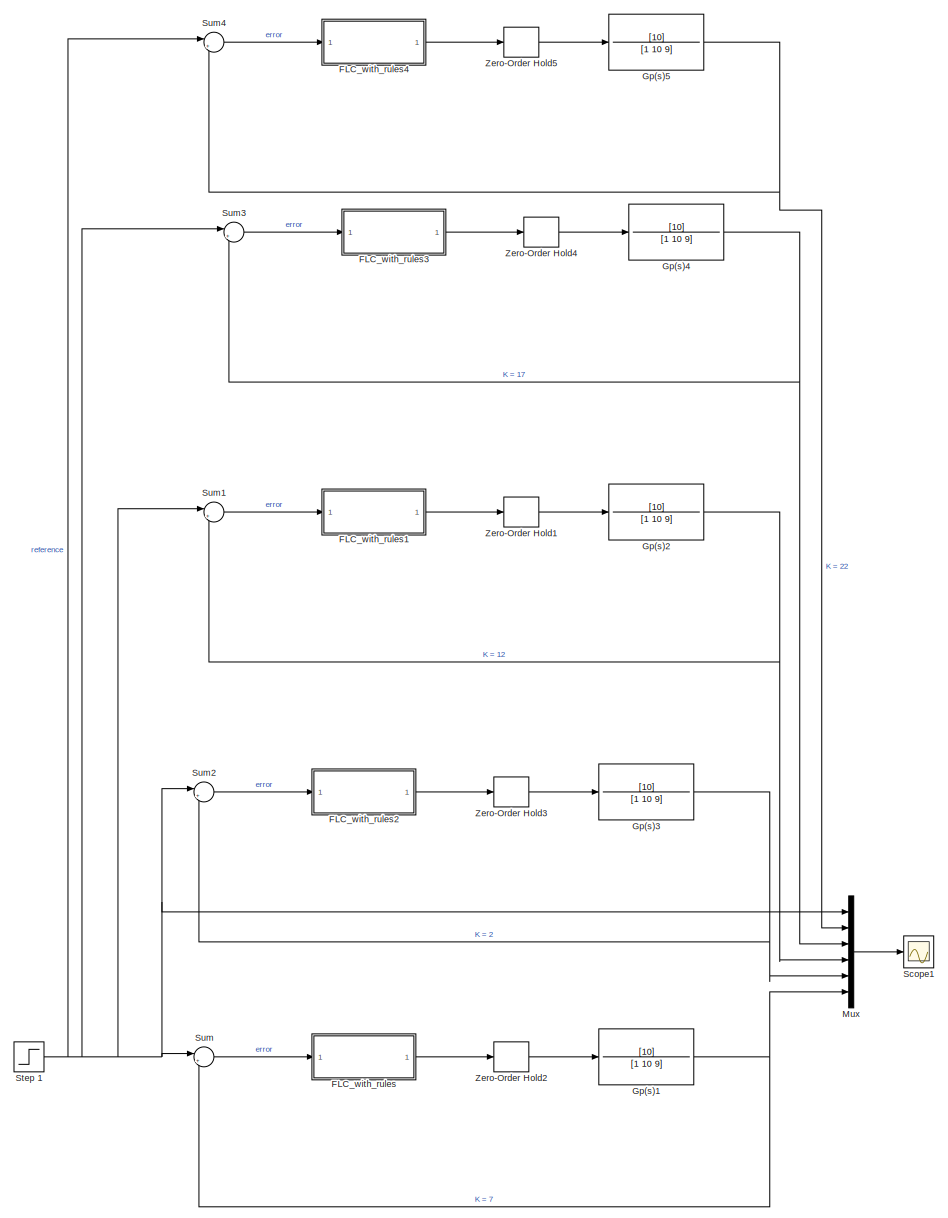
[diagram: root canvas - part 1/1, most of the canvas]
MODEL slx_d6fe6d2ef00e
KIND model
CONFIG AbsTol = auto
CONFIG EnableMultiTasking = off
CONFIG FixedStep = auto
CONFIG MaxStep = auto
CONFIG MinStep = auto
CONFIG RelTol = 1e-3
CONFIG SampleTimeConstraint = Unconstrained
CONFIG Solver = VariableStepAuto
CONFIG SolverName = VariableStepAuto
CONFIG StartTime = 0.0
CONFIG StopTime = 10.0
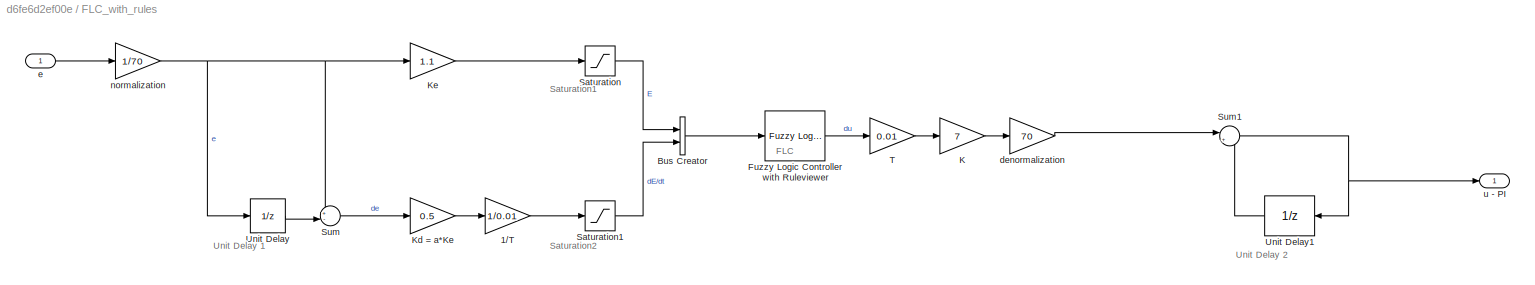
BLOCK [SubSystem] FLC_with_rules
  Ports = [1, 1]
  RequestExecContextInheritance = off
BLOCK [Gain] FLC_with_rules/1//T
  Gain = 1/0.01
  OutDataTypeStr = Inherit: Inherit via internal rule
  ParamDataTypeStr = Inherit: Inherit via internal rule
  SaturateOnIntegerOverflow = off
BLOCK [BusCreator] FLC_with_rules/Bus Creator
  DisplayOption = bar
  InheritFromInputs = on
  Inputs = 2
  Ports = [2, 1]
BLOCK [Reference] FLC_with_rules/Fuzzy Logic Controller with Ruleviewer  REF=fuzblock/Fuzzy Logic   (lib defined in mdl_858b3b3e7478)
Controller 
with Ruleviewer
  Ports = [1, 1]
  SourceBlock = fuzblock/Fuzzy Logic \nController \nwith Ruleviewer
  SourceProductBaseCode = FL
  SourceProductName = Fuzzy Logic Toolbox
  SourceType = Fuzzy Inference System
BLOCK [Gain] FLC_with_rules/K
  Gain = 7
  OutDataTypeStr = Inherit: Inherit via internal rule
  ParamDataTypeStr = Inherit: Inherit via internal rule
  SaturateOnIntegerOverflow = off
BLOCK [Gain] FLC_with_rules/Kd = a*Ke
  Gain = 0.5
  OutDataTypeStr = Inherit: Inherit via internal rule
  ParamDataTypeStr = Inherit: Inherit via internal rule
  SaturateOnIntegerOverflow = off
BLOCK [Gain] FLC_with_rules/Ke
  Gain = 1.1
  OutDataTypeStr = Inherit: Inherit via internal rule
  ParamDataTypeStr = Inherit: Inherit via internal rule
  SaturateOnIntegerOverflow = off
BLOCK [Saturate] FLC_with_rules/Saturation
  InputPortMap = u0
  LowerLimit = -1
  Ports = [1, 1]
  UpperLimit = 1
BLOCK [Saturate] FLC_with_rules/Saturation1
  InputPortMap = u0
  LowerLimit = -1
  Ports = [1, 1]
  UpperLimit = 1
BLOCK [Sum] FLC_with_rules/Sum
  IconShape = round
  InputSameDT = off
  Inputs = +-|
  OutDataTypeStr = Inherit: Inherit via internal rule
  Ports = [2, 1]
  SaturateOnIntegerOverflow = off
BLOCK [Sum] FLC_with_rules/Sum1
  IconShape = round
  InputSameDT = off
  Inputs = |++
  OutDataTypeStr = Inherit: Inherit via internal rule
  Ports = [2, 1]
  SaturateOnIntegerOverflow = off
BLOCK [Gain] FLC_with_rules/T
  Gain = 0.01
  OutDataTypeStr = Inherit: Inherit via internal rule
  ParamDataTypeStr = Inherit: Inherit via internal rule
  SaturateOnIntegerOverflow = off
BLOCK [UnitDelay] FLC_with_rules/Unit Delay
  HasFrameUpgradeWarning = on
  SampleTime = -1
BLOCK [UnitDelay] FLC_with_rules/Unit Delay1
  HasFrameUpgradeWarning = on
  SampleTime = -1
BLOCK [Gain] FLC_with_rules/denormalization
  Gain = 70
  OutDataTypeStr = Inherit: Inherit via internal rule
  ParamDataTypeStr = Inherit: Inherit via internal rule
  SaturateOnIntegerOverflow = off
BLOCK [Inport] FLC_with_rules/e
  IconDisplay = Port number
BLOCK [Gain] FLC_with_rules/normalization
  Gain = 1/70
  OutDataTypeStr = Inherit: Inherit via internal rule
  ParamDataTypeStr = Inherit: Inherit via internal rule
  SaturateOnIntegerOverflow = off
BLOCK [Outport] FLC_with_rules/u - PI
  IconDisplay = Port number
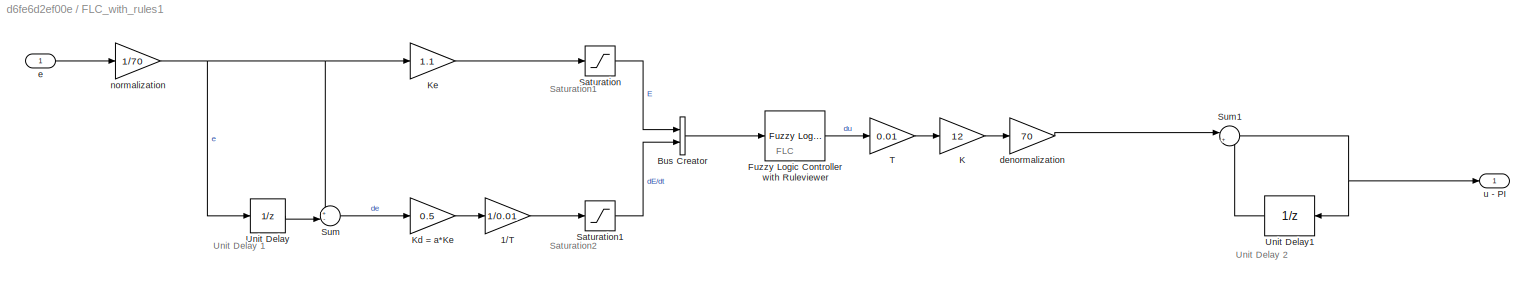
BLOCK [SubSystem] FLC_with_rules1
  Ports = [1, 1]
  RequestExecContextInheritance = off
BLOCK [Gain] FLC_with_rules1/1//T
  Gain = 1/0.01
  OutDataTypeStr = Inherit: Inherit via internal rule
  ParamDataTypeStr = Inherit: Inherit via internal rule
  SaturateOnIntegerOverflow = off
BLOCK [BusCreator] FLC_with_rules1/Bus Creator
  DisplayOption = bar
  InheritFromInputs = on
  Inputs = 2
  Ports = [2, 1]
BLOCK [Reference] FLC_with_rules1/Fuzzy Logic Controller with Ruleviewer  REF=fuzblock/Fuzzy Logic   (lib defined in mdl_858b3b3e7478)
Controller 
with Ruleviewer
  Ports = [1, 1]
  SourceBlock = fuzblock/Fuzzy Logic \nController \nwith Ruleviewer
  SourceProductBaseCode = FL
  SourceProductName = Fuzzy Logic Toolbox
  SourceType = Fuzzy Inference System
BLOCK [Gain] FLC_with_rules1/K
  Gain = 12
  OutDataTypeStr = Inherit: Inherit via internal rule
  ParamDataTypeStr = Inherit: Inherit via internal rule
  SaturateOnIntegerOverflow = off
BLOCK [Gain] FLC_with_rules1/Kd = a*Ke
  Gain = 0.5
  OutDataTypeStr = Inherit: Inherit via internal rule
  ParamDataTypeStr = Inherit: Inherit via internal rule
  SaturateOnIntegerOverflow = off
BLOCK [Gain] FLC_with_rules1/Ke
  Gain = 1.1
  OutDataTypeStr = Inherit: Inherit via internal rule
  ParamDataTypeStr = Inherit: Inherit via internal rule
  SaturateOnIntegerOverflow = off
BLOCK [Saturate] FLC_with_rules1/Saturation
  InputPortMap = u0
  LowerLimit = -1
  Ports = [1, 1]
  UpperLimit = 1
BLOCK [Saturate] FLC_with_rules1/Saturation1
  InputPortMap = u0
  LowerLimit = -1
  Ports = [1, 1]
  UpperLimit = 1
BLOCK [Sum] FLC_with_rules1/Sum
  IconShape = round
  InputSameDT = off
  Inputs = +-|
  OutDataTypeStr = Inherit: Inherit via internal rule
  Ports = [2, 1]
  SaturateOnIntegerOverflow = off
BLOCK [Sum] FLC_with_rules1/Sum1
  IconShape = round
  InputSameDT = off
  Inputs = |++
  OutDataTypeStr = Inherit: Inherit via internal rule
  Ports = [2, 1]
  SaturateOnIntegerOverflow = off
BLOCK [Gain] FLC_with_rules1/T
  Gain = 0.01
  OutDataTypeStr = Inherit: Inherit via internal rule
  ParamDataTypeStr = Inherit: Inherit via internal rule
  SaturateOnIntegerOverflow = off
BLOCK [UnitDelay] FLC_with_rules1/Unit Delay
  HasFrameUpgradeWarning = on
  SampleTime = -1
BLOCK [UnitDelay] FLC_with_rules1/Unit Delay1
  HasFrameUpgradeWarning = on
  SampleTime = -1
BLOCK [Gain] FLC_with_rules1/denormalization
  Gain = 70
  OutDataTypeStr = Inherit: Inherit via internal rule
  ParamDataTypeStr = Inherit: Inherit via internal rule
  SaturateOnIntegerOverflow = off
BLOCK [Inport] FLC_with_rules1/e
  IconDisplay = Port number
BLOCK [Gain] FLC_with_rules1/normalization
  Gain = 1/70
  OutDataTypeStr = Inherit: Inherit via internal rule
  ParamDataTypeStr = Inherit: Inherit via internal rule
  SaturateOnIntegerOverflow = off
BLOCK [Outport] FLC_with_rules1/u - PI
  IconDisplay = Port number
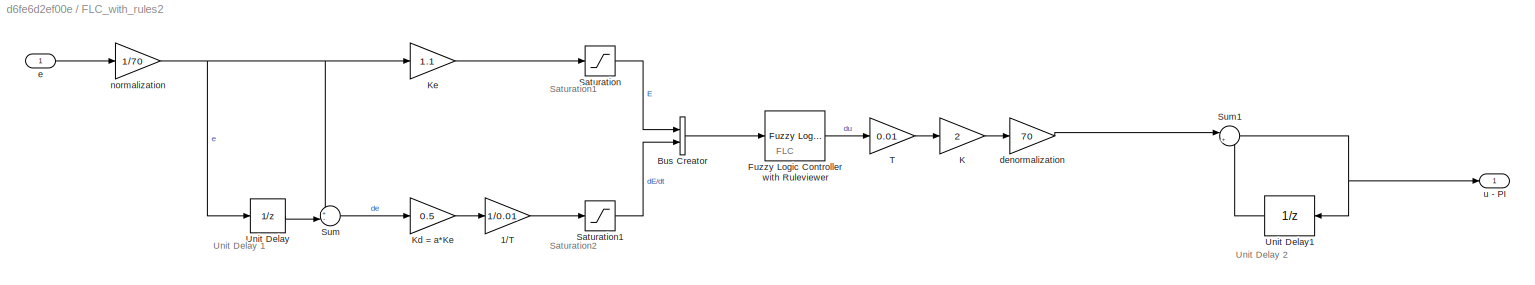
BLOCK [SubSystem] FLC_with_rules2
  Ports = [1, 1]
  RequestExecContextInheritance = off
BLOCK [Gain] FLC_with_rules2/1//T
  Gain = 1/0.01
  OutDataTypeStr = Inherit: Inherit via internal rule
  ParamDataTypeStr = Inherit: Inherit via internal rule
  SaturateOnIntegerOverflow = off
BLOCK [BusCreator] FLC_with_rules2/Bus Creator
  DisplayOption = bar
  InheritFromInputs = on
  Inputs = 2
  Ports = [2, 1]
BLOCK [Reference] FLC_with_rules2/Fuzzy Logic Controller with Ruleviewer  REF=fuzblock/Fuzzy Logic   (lib defined in mdl_858b3b3e7478)
Controller 
with Ruleviewer
  Ports = [1, 1]
  SourceBlock = fuzblock/Fuzzy Logic \nController \nwith Ruleviewer
  SourceProductBaseCode = FL
  SourceProductName = Fuzzy Logic Toolbox
  SourceType = Fuzzy Inference System
BLOCK [Gain] FLC_with_rules2/K
  Gain = 2
  OutDataTypeStr = Inherit: Inherit via internal rule
  ParamDataTypeStr = Inherit: Inherit via internal rule
  SaturateOnIntegerOverflow = off
BLOCK [Gain] FLC_with_rules2/Kd = a*Ke
  Gain = 0.5
  OutDataTypeStr = Inherit: Inherit via internal rule
  ParamDataTypeStr = Inherit: Inherit via internal rule
  SaturateOnIntegerOverflow = off
BLOCK [Gain] FLC_with_rules2/Ke
  Gain = 1.1
  OutDataTypeStr = Inherit: Inherit via internal rule
  ParamDataTypeStr = Inherit: Inherit via internal rule
  SaturateOnIntegerOverflow = off
BLOCK [Saturate] FLC_with_rules2/Saturation
  InputPortMap = u0
  LowerLimit = -1
  Ports = [1, 1]
  UpperLimit = 1
BLOCK [Saturate] FLC_with_rules2/Saturation1
  InputPortMap = u0
  LowerLimit = -1
  Ports = [1, 1]
  UpperLimit = 1
BLOCK [Sum] FLC_with_rules2/Sum
  IconShape = round
  InputSameDT = off
  Inputs = +-|
  OutDataTypeStr = Inherit: Inherit via internal rule
  Ports = [2, 1]
  SaturateOnIntegerOverflow = off
BLOCK [Sum] FLC_with_rules2/Sum1
  IconShape = round
  InputSameDT = off
  Inputs = |++
  OutDataTypeStr = Inherit: Inherit via internal rule
  Ports = [2, 1]
  SaturateOnIntegerOverflow = off
BLOCK [Gain] FLC_with_rules2/T
  Gain = 0.01
  OutDataTypeStr = Inherit: Inherit via internal rule
  ParamDataTypeStr = Inherit: Inherit via internal rule
  SaturateOnIntegerOverflow = off
BLOCK [UnitDelay] FLC_with_rules2/Unit Delay
  HasFrameUpgradeWarning = on
  SampleTime = -1
BLOCK [UnitDelay] FLC_with_rules2/Unit Delay1
  HasFrameUpgradeWarning = on
  SampleTime = -1
BLOCK [Gain] FLC_with_rules2/denormalization
  Gain = 70
  OutDataTypeStr = Inherit: Inherit via internal rule
  ParamDataTypeStr = Inherit: Inherit via internal rule
  SaturateOnIntegerOverflow = off
BLOCK [Inport] FLC_with_rules2/e
  IconDisplay = Port number
BLOCK [Gain] FLC_with_rules2/normalization
  Gain = 1/70
  OutDataTypeStr = Inherit: Inherit via internal rule
  ParamDataTypeStr = Inherit: Inherit via internal rule
  SaturateOnIntegerOverflow = off
BLOCK [Outport] FLC_with_rules2/u - PI
  IconDisplay = Port number
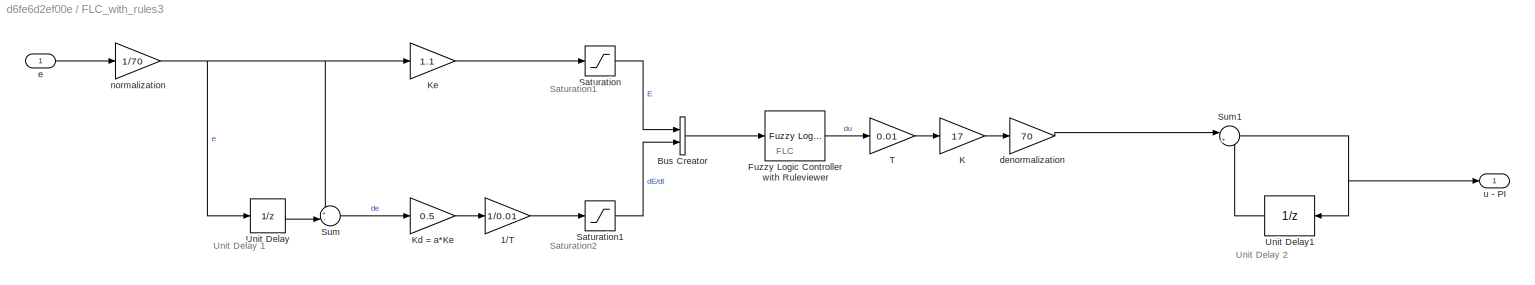
BLOCK [SubSystem] FLC_with_rules3
  Ports = [1, 1]
  RequestExecContextInheritance = off
BLOCK [Gain] FLC_with_rules3/1//T
  Gain = 1/0.01
  OutDataTypeStr = Inherit: Inherit via internal rule
  ParamDataTypeStr = Inherit: Inherit via internal rule
  SaturateOnIntegerOverflow = off
BLOCK [BusCreator] FLC_with_rules3/Bus Creator
  DisplayOption = bar
  InheritFromInputs = on
  Inputs = 2
  Ports = [2, 1]
BLOCK [Reference] FLC_with_rules3/Fuzzy Logic Controller with Ruleviewer  REF=fuzblock/Fuzzy Logic   (lib defined in mdl_858b3b3e7478)
Controller 
with Ruleviewer
  Ports = [1, 1]
  SourceBlock = fuzblock/Fuzzy Logic \nController \nwith Ruleviewer
  SourceProductBaseCode = FL
  SourceProductName = Fuzzy Logic Toolbox
  SourceType = Fuzzy Inference System
BLOCK [Gain] FLC_with_rules3/K
  Gain = 17
  OutDataTypeStr = Inherit: Inherit via internal rule
  ParamDataTypeStr = Inherit: Inherit via internal rule
  SaturateOnIntegerOverflow = off
BLOCK [Gain] FLC_with_rules3/Kd = a*Ke
  Gain = 0.5
  OutDataTypeStr = Inherit: Inherit via internal rule
  ParamDataTypeStr = Inherit: Inherit via internal rule
  SaturateOnIntegerOverflow = off
BLOCK [Gain] FLC_with_rules3/Ke
  Gain = 1.1
  OutDataTypeStr = Inherit: Inherit via internal rule
  ParamDataTypeStr = Inherit: Inherit via internal rule
  SaturateOnIntegerOverflow = off
BLOCK [Saturate] FLC_with_rules3/Saturation
  InputPortMap = u0
  LowerLimit = -1
  Ports = [1, 1]
  UpperLimit = 1
BLOCK [Saturate] FLC_with_rules3/Saturation1
  InputPortMap = u0
  LowerLimit = -1
  Ports = [1, 1]
  UpperLimit = 1
BLOCK [Sum] FLC_with_rules3/Sum
  IconShape = round
  InputSameDT = off
  Inputs = +-|
  OutDataTypeStr = Inherit: Inherit via internal rule
  Ports = [2, 1]
  SaturateOnIntegerOverflow = off
BLOCK [Sum] FLC_with_rules3/Sum1
  IconShape = round
  InputSameDT = off
  Inputs = |++
  OutDataTypeStr = Inherit: Inherit via internal rule
  Ports = [2, 1]
  SaturateOnIntegerOverflow = off
BLOCK [Gain] FLC_with_rules3/T
  Gain = 0.01
  OutDataTypeStr = Inherit: Inherit via internal rule
  ParamDataTypeStr = Inherit: Inherit via internal rule
  SaturateOnIntegerOverflow = off
BLOCK [UnitDelay] FLC_with_rules3/Unit Delay
  HasFrameUpgradeWarning = on
  SampleTime = -1
BLOCK [UnitDelay] FLC_with_rules3/Unit Delay1
  HasFrameUpgradeWarning = on
  SampleTime = -1
BLOCK [Gain] FLC_with_rules3/denormalization
  Gain = 70
  OutDataTypeStr = Inherit: Inherit via internal rule
  ParamDataTypeStr = Inherit: Inherit via internal rule
  SaturateOnIntegerOverflow = off
BLOCK [Inport] FLC_with_rules3/e
  IconDisplay = Port number
BLOCK [Gain] FLC_with_rules3/normalization
  Gain = 1/70
  OutDataTypeStr = Inherit: Inherit via internal rule
  ParamDataTypeStr = Inherit: Inherit via internal rule
  SaturateOnIntegerOverflow = off
BLOCK [Outport] FLC_with_rules3/u - PI
  IconDisplay = Port number
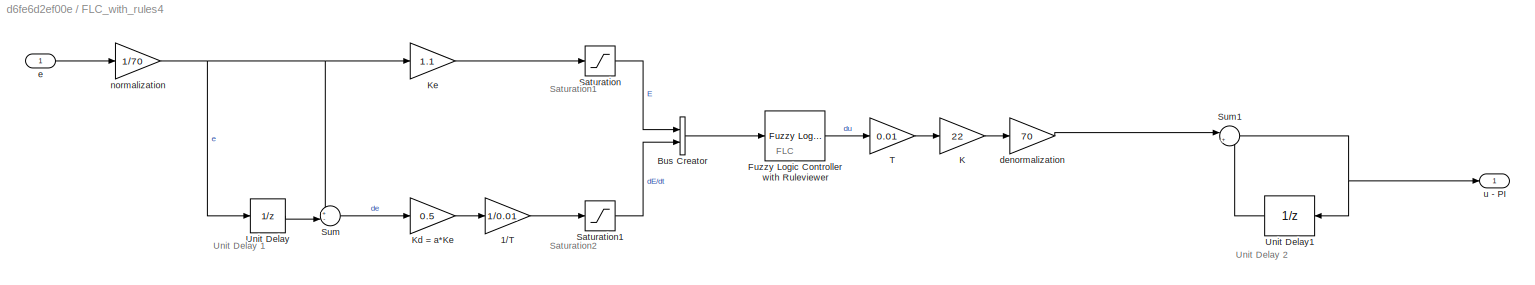
BLOCK [SubSystem] FLC_with_rules4
  Ports = [1, 1]
  RequestExecContextInheritance = off
BLOCK [Gain] FLC_with_rules4/1//T
  Gain = 1/0.01
  OutDataTypeStr = Inherit: Inherit via internal rule
  ParamDataTypeStr = Inherit: Inherit via internal rule
  SaturateOnIntegerOverflow = off
BLOCK [BusCreator] FLC_with_rules4/Bus Creator
  DisplayOption = bar
  InheritFromInputs = on
  Inputs = 2
  Ports = [2, 1]
BLOCK [Reference] FLC_with_rules4/Fuzzy Logic Controller with Ruleviewer  REF=fuzblock/Fuzzy Logic   (lib defined in mdl_858b3b3e7478)
Controller 
with Ruleviewer
  Ports = [1, 1]
  SourceBlock = fuzblock/Fuzzy Logic \nController \nwith Ruleviewer
  SourceProductBaseCode = FL
  SourceProductName = Fuzzy Logic Toolbox
  SourceType = Fuzzy Inference System
BLOCK [Gain] FLC_with_rules4/K
  Gain = 22
  OutDataTypeStr = Inherit: Inherit via internal rule
  ParamDataTypeStr = Inherit: Inherit via internal rule
  SaturateOnIntegerOverflow = off
BLOCK [Gain] FLC_with_rules4/Kd = a*Ke
  Gain = 0.5
  OutDataTypeStr = Inherit: Inherit via internal rule
  ParamDataTypeStr = Inherit: Inherit via internal rule
  SaturateOnIntegerOverflow = off
BLOCK [Gain] FLC_with_rules4/Ke
  Gain = 1.1
  OutDataTypeStr = Inherit: Inherit via internal rule
  ParamDataTypeStr = Inherit: Inherit via internal rule
  SaturateOnIntegerOverflow = off
BLOCK [Saturate] FLC_with_rules4/Saturation
  InputPortMap = u0
  LowerLimit = -1
  Ports = [1, 1]
  UpperLimit = 1
BLOCK [Saturate] FLC_with_rules4/Saturation1
  InputPortMap = u0
  LowerLimit = -1
  Ports = [1, 1]
  UpperLimit = 1
BLOCK [Sum] FLC_with_rules4/Sum
  IconShape = round
  InputSameDT = off
  Inputs = +-|
  OutDataTypeStr = Inherit: Inherit via internal rule
  Ports = [2, 1]
  SaturateOnIntegerOverflow = off
BLOCK [Sum] FLC_with_rules4/Sum1
  IconShape = round
  InputSameDT = off
  Inputs = |++
  OutDataTypeStr = Inherit: Inherit via internal rule
  Ports = [2, 1]
  SaturateOnIntegerOverflow = off
BLOCK [Gain] FLC_with_rules4/T
  Gain = 0.01
  OutDataTypeStr = Inherit: Inherit via internal rule
  ParamDataTypeStr = Inherit: Inherit via internal rule
  SaturateOnIntegerOverflow = off
BLOCK [UnitDelay] FLC_with_rules4/Unit Delay
  HasFrameUpgradeWarning = on
  SampleTime = -1
BLOCK [UnitDelay] FLC_with_rules4/Unit Delay1
  HasFrameUpgradeWarning = on
  SampleTime = -1
BLOCK [Gain] FLC_with_rules4/denormalization
  Gain = 70
  OutDataTypeStr = Inherit: Inherit via internal rule
  ParamDataTypeStr = Inherit: Inherit via internal rule
  SaturateOnIntegerOverflow = off
BLOCK [Inport] FLC_with_rules4/e
  IconDisplay = Port number
BLOCK [Gain] FLC_with_rules4/normalization
  Gain = 1/70
  OutDataTypeStr = Inherit: Inherit via internal rule
  ParamDataTypeStr = Inherit: Inherit via internal rule
  SaturateOnIntegerOverflow = off
BLOCK [Outport] FLC_with_rules4/u - PI
  IconDisplay = Port number
BLOCK [TransferFcn] Gp(s)1
  Denominator = [1 10 9]
  Numerator = [10]
BLOCK [TransferFcn] Gp(s)2
  Denominator = [1 10 9]
  Numerator = [10]
BLOCK [TransferFcn] Gp(s)3
  Denominator = [1 10 9]
  Numerator = [10]
BLOCK [TransferFcn] Gp(s)4
  Denominator = [1 10 9]
  Numerator = [10]
BLOCK [TransferFcn] Gp(s)5
  Denominator = [1 10 9]
  Numerator = [10]
BLOCK [Mux] Mux
  DisplayOption = bar
  Inputs = 6
  Ports = [6, 1]
BLOCK [Scope] Scope1
  Floating = off
  NumInputPorts = 1
  Ports = [1]
  ScopeSpecificationString = Simulink.scopes.TimeScopeBlockCfg('CurrentConfiguration', extmgr.ConfigurationSet(extmgr.Configuration('Core','General UI',true),extmgr.Configuration('Core','Source UI',true),extmgr.Configuration('Sources','WiredSimulink',true,'DataLogging',true,'DataLoggingVariableName','ScopeData1'),extmgr.Configuration('Visuals','Time Domain',true,'SerializedDisplays',{struct('MinYLimReal','-0.60229','MaxYLimRe...<+1845ch>
BLOCK [Step] Step 1
  SampleTime = 0.01
  Time = 0
BLOCK [Sum] Sum
  IconShape = round
  InputSameDT = off
  Inputs = |+-
  OutDataTypeStr = Inherit: Inherit via internal rule
  Ports = [2, 1]
  SaturateOnIntegerOverflow = off
BLOCK [Sum] Sum1
  IconShape = round
  InputSameDT = off
  Inputs = |+-
  OutDataTypeStr = Inherit: Inherit via internal rule
  Ports = [2, 1]
  SaturateOnIntegerOverflow = off
BLOCK [Sum] Sum2
  IconShape = round
  InputSameDT = off
  Inputs = |+-
  OutDataTypeStr = Inherit: Inherit via internal rule
  Ports = [2, 1]
  SaturateOnIntegerOverflow = off
BLOCK [Sum] Sum3
  IconShape = round
  InputSameDT = off
  Inputs = |+-
  OutDataTypeStr = Inherit: Inherit via internal rule
  Ports = [2, 1]
  SaturateOnIntegerOverflow = off
BLOCK [Sum] Sum4
  IconShape = round
  InputSameDT = off
  Inputs = |+-
  OutDataTypeStr = Inherit: Inherit via internal rule
  Ports = [2, 1]
  SaturateOnIntegerOverflow = off
BLOCK [ZeroOrderHold] Zero-Order Hold1
  SampleTime = 0.01
BLOCK [ZeroOrderHold] Zero-Order Hold2
  SampleTime = 0.01
BLOCK [ZeroOrderHold] Zero-Order Hold3
  SampleTime = 0.01
BLOCK [ZeroOrderHold] Zero-Order Hold4
  SampleTime = 0.01
BLOCK [ZeroOrderHold] Zero-Order Hold5
  SampleTime = 0.01
ANNOTATION FLC_with_rules: FLC
ANNOTATION FLC_with_rules: Saturation1
ANNOTATION FLC_with_rules: Saturation2
ANNOTATION FLC_with_rules: Unit Delay 1
ANNOTATION FLC_with_rules: Unit Delay 2
ANNOTATION FLC_with_rules1: FLC
ANNOTATION FLC_with_rules1: Saturation1
ANNOTATION FLC_with_rules1: Saturation2
ANNOTATION FLC_with_rules1: Unit Delay 1
ANNOTATION FLC_with_rules1: Unit Delay 2
ANNOTATION FLC_with_rules2: FLC
ANNOTATION FLC_with_rules2: Saturation1
ANNOTATION FLC_with_rules2: Saturation2
ANNOTATION FLC_with_rules2: Unit Delay 1
ANNOTATION FLC_with_rules2: Unit Delay 2
ANNOTATION FLC_with_rules3: FLC
ANNOTATION FLC_with_rules3: Saturation1
ANNOTATION FLC_with_rules3: Saturation2
ANNOTATION FLC_with_rules3: Unit Delay 1
ANNOTATION FLC_with_rules3: Unit Delay 2
ANNOTATION FLC_with_rules4: FLC
ANNOTATION FLC_with_rules4: Saturation1
ANNOTATION FLC_with_rules4: Saturation2
ANNOTATION FLC_with_rules4: Unit Delay 1
ANNOTATION FLC_with_rules4: Unit Delay 2
LINE FLC_with_rules/1//T:1 -> FLC_with_rules/Saturation1:1
LINE FLC_with_rules/Bus Creator:1 -> FLC_with_rules/Fuzzy Logic Controller with Ruleviewer:1
LINE FLC_with_rules/Fuzzy Logic Controller with Ruleviewer:1 -> FLC_with_rules/T:1
LINE FLC_with_rules/K:1 -> FLC_with_rules/denormalization:1
LINE FLC_with_rules/Kd = a*Ke:1 -> FLC_with_rules/1//T:1
LINE FLC_with_rules/Ke:1 -> FLC_with_rules/Saturation:1
LINE FLC_with_rules/Saturation1:1 -> FLC_with_rules/Bus Creator:2
LINE FLC_with_rules/Saturation:1 -> FLC_with_rules/Bus Creator:1
NET FLC_with_rules/Sum1:1 -> FLC_with_rules/Unit Delay1:1, FLC_with_rules/u - PI:1
LINE FLC_with_rules/Sum:1 -> FLC_with_rules/Kd = a*Ke:1
LINE FLC_with_rules/T:1 -> FLC_with_rules/K:1
LINE FLC_with_rules/Unit Delay1:1 -> FLC_with_rules/Sum1:2
LINE FLC_with_rules/Unit Delay:1 -> FLC_with_rules/Sum:2
LINE FLC_with_rules/denormalization:1 -> FLC_with_rules/Sum1:1
LINE FLC_with_rules/e:1 -> FLC_with_rules/normalization:1
NET FLC_with_rules/normalization:1 -> FLC_with_rules/Ke:1, FLC_with_rules/Sum:1, FLC_with_rules/Unit Delay:1
LINE FLC_with_rules1/1//T:1 -> FLC_with_rules1/Saturation1:1
LINE FLC_with_rules1/Bus Creator:1 -> FLC_with_rules1/Fuzzy Logic Controller with Ruleviewer:1
LINE FLC_with_rules1/Fuzzy Logic Controller with Ruleviewer:1 -> FLC_with_rules1/T:1
LINE FLC_with_rules1/K:1 -> FLC_with_rules1/denormalization:1
LINE FLC_with_rules1/Kd = a*Ke:1 -> FLC_with_rules1/1//T:1
LINE FLC_with_rules1/Ke:1 -> FLC_with_rules1/Saturation:1
LINE FLC_with_rules1/Saturation1:1 -> FLC_with_rules1/Bus Creator:2
LINE FLC_with_rules1/Saturation:1 -> FLC_with_rules1/Bus Creator:1
NET FLC_with_rules1/Sum1:1 -> FLC_with_rules1/Unit Delay1:1, FLC_with_rules1/u - PI:1
LINE FLC_with_rules1/Sum:1 -> FLC_with_rules1/Kd = a*Ke:1
LINE FLC_with_rules1/T:1 -> FLC_with_rules1/K:1
LINE FLC_with_rules1/Unit Delay1:1 -> FLC_with_rules1/Sum1:2
LINE FLC_with_rules1/Unit Delay:1 -> FLC_with_rules1/Sum:2
LINE FLC_with_rules1/denormalization:1 -> FLC_with_rules1/Sum1:1
LINE FLC_with_rules1/e:1 -> FLC_with_rules1/normalization:1
NET FLC_with_rules1/normalization:1 -> FLC_with_rules1/Ke:1, FLC_with_rules1/Sum:1, FLC_with_rules1/Unit Delay:1
LINE FLC_with_rules1:1 -> Zero-Order Hold1:1
LINE FLC_with_rules2/1//T:1 -> FLC_with_rules2/Saturation1:1
LINE FLC_with_rules2/Bus Creator:1 -> FLC_with_rules2/Fuzzy Logic Controller with Ruleviewer:1
LINE FLC_with_rules2/Fuzzy Logic Controller with Ruleviewer:1 -> FLC_with_rules2/T:1
LINE FLC_with_rules2/K:1 -> FLC_with_rules2/denormalization:1
LINE FLC_with_rules2/Kd = a*Ke:1 -> FLC_with_rules2/1//T:1
LINE FLC_with_rules2/Ke:1 -> FLC_with_rules2/Saturation:1
LINE FLC_with_rules2/Saturation1:1 -> FLC_with_rules2/Bus Creator:2
LINE FLC_with_rules2/Saturation:1 -> FLC_with_rules2/Bus Creator:1
NET FLC_with_rules2/Sum1:1 -> FLC_with_rules2/Unit Delay1:1, FLC_with_rules2/u - PI:1
LINE FLC_with_rules2/Sum:1 -> FLC_with_rules2/Kd = a*Ke:1
LINE FLC_with_rules2/T:1 -> FLC_with_rules2/K:1
LINE FLC_with_rules2/Unit Delay1:1 -> FLC_with_rules2/Sum1:2
LINE FLC_with_rules2/Unit Delay:1 -> FLC_with_rules2/Sum:2
LINE FLC_with_rules2/denormalization:1 -> FLC_with_rules2/Sum1:1
LINE FLC_with_rules2/e:1 -> FLC_with_rules2/normalization:1
NET FLC_with_rules2/normalization:1 -> FLC_with_rules2/Ke:1, FLC_with_rules2/Sum:1, FLC_with_rules2/Unit Delay:1
LINE FLC_with_rules2:1 -> Zero-Order Hold3:1
LINE FLC_with_rules3/1//T:1 -> FLC_with_rules3/Saturation1:1
LINE FLC_with_rules3/Bus Creator:1 -> FLC_with_rules3/Fuzzy Logic Controller with Ruleviewer:1
LINE FLC_with_rules3/Fuzzy Logic Controller with Ruleviewer:1 -> FLC_with_rules3/T:1
LINE FLC_with_rules3/K:1 -> FLC_with_rules3/denormalization:1
LINE FLC_with_rules3/Kd = a*Ke:1 -> FLC_with_rules3/1//T:1
LINE FLC_with_rules3/Ke:1 -> FLC_with_rules3/Saturation:1
LINE FLC_with_rules3/Saturation1:1 -> FLC_with_rules3/Bus Creator:2
LINE FLC_with_rules3/Saturation:1 -> FLC_with_rules3/Bus Creator:1
NET FLC_with_rules3/Sum1:1 -> FLC_with_rules3/Unit Delay1:1, FLC_with_rules3/u - PI:1
LINE FLC_with_rules3/Sum:1 -> FLC_with_rules3/Kd = a*Ke:1
LINE FLC_with_rules3/T:1 -> FLC_with_rules3/K:1
LINE FLC_with_rules3/Unit Delay1:1 -> FLC_with_rules3/Sum1:2
LINE FLC_with_rules3/Unit Delay:1 -> FLC_with_rules3/Sum:2
LINE FLC_with_rules3/denormalization:1 -> FLC_with_rules3/Sum1:1
LINE FLC_with_rules3/e:1 -> FLC_with_rules3/normalization:1
NET FLC_with_rules3/normalization:1 -> FLC_with_rules3/Ke:1, FLC_with_rules3/Sum:1, FLC_with_rules3/Unit Delay:1
LINE FLC_with_rules3:1 -> Zero-Order Hold4:1
LINE FLC_with_rules4/1//T:1 -> FLC_with_rules4/Saturation1:1
LINE FLC_with_rules4/Bus Creator:1 -> FLC_with_rules4/Fuzzy Logic Controller with Ruleviewer:1
LINE FLC_with_rules4/Fuzzy Logic Controller with Ruleviewer:1 -> FLC_with_rules4/T:1
LINE FLC_with_rules4/K:1 -> FLC_with_rules4/denormalization:1
LINE FLC_with_rules4/Kd = a*Ke:1 -> FLC_with_rules4/1//T:1
LINE FLC_with_rules4/Ke:1 -> FLC_with_rules4/Saturation:1
LINE FLC_with_rules4/Saturation1:1 -> FLC_with_rules4/Bus Creator:2
LINE FLC_with_rules4/Saturation:1 -> FLC_with_rules4/Bus Creator:1
NET FLC_with_rules4/Sum1:1 -> FLC_with_rules4/Unit Delay1:1, FLC_with_rules4/u - PI:1
LINE FLC_with_rules4/Sum:1 -> FLC_with_rules4/Kd = a*Ke:1
LINE FLC_with_rules4/T:1 -> FLC_with_rules4/K:1
LINE FLC_with_rules4/Unit Delay1:1 -> FLC_with_rules4/Sum1:2
LINE FLC_with_rules4/Unit Delay:1 -> FLC_with_rules4/Sum:2
LINE FLC_with_rules4/denormalization:1 -> FLC_with_rules4/Sum1:1
LINE FLC_with_rules4/e:1 -> FLC_with_rules4/normalization:1
NET FLC_with_rules4/normalization:1 -> FLC_with_rules4/Ke:1, FLC_with_rules4/Sum:1, FLC_with_rules4/Unit Delay:1
LINE FLC_with_rules4:1 -> Zero-Order Hold5:1
LINE FLC_with_rules:1 -> Zero-Order Hold2:1
NET Gp(s)1:1 -> Mux:6, Sum:2
NET Gp(s)2:1 -> Mux:4, Sum1:2
NET Gp(s)3:1 -> Mux:5, Sum2:2
NET Gp(s)4:1 -> Mux:3, Sum3:2
NET Gp(s)5:1 -> Mux:2, Sum4:2
LINE Mux:1 -> Scope1:1
NET Step 1:1 -> Mux:1, Sum1:1, Sum2:1, Sum3:1, Sum4:1, Sum:1
LINE Sum1:1 -> FLC_with_rules1:1
LINE Sum2:1 -> FLC_with_rules2:1
LINE Sum3:1 -> FLC_with_rules3:1
LINE Sum4:1 -> FLC_with_rules4:1
LINE Sum:1 -> FLC_with_rules:1
LINE Zero-Order Hold1:1 -> Gp(s)2:1
LINE Zero-Order Hold2:1 -> Gp(s)1:1
LINE Zero-Order Hold3:1 -> Gp(s)3:1
LINE Zero-Order Hold4:1 -> Gp(s)4:1
LINE Zero-Order Hold5:1 -> Gp(s)5:1
note: NET lines group one-source signal fan-out (src -> all destinations, sorted); 1:1 wires keep LINE
